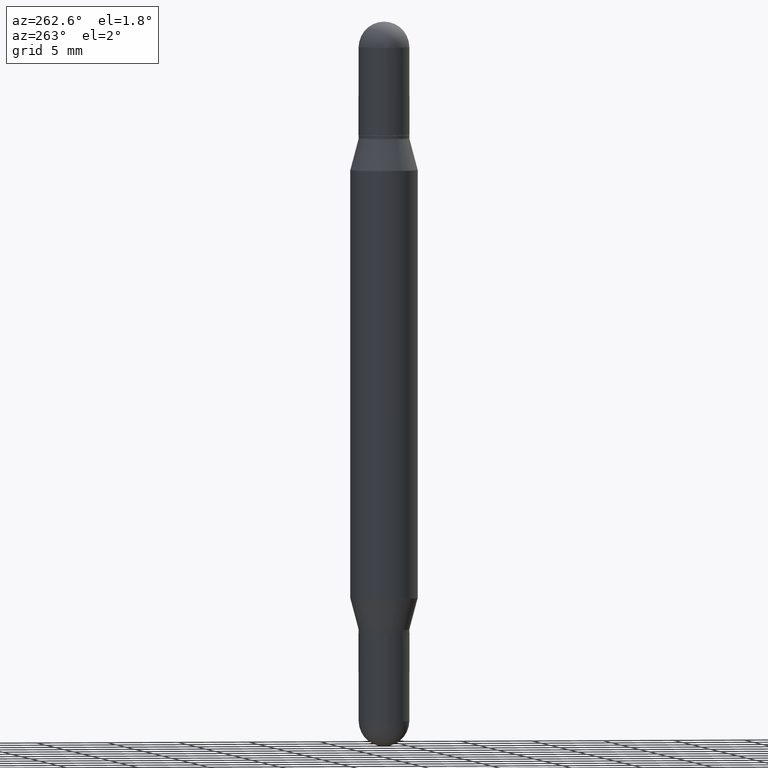
[diagram: clean part render]
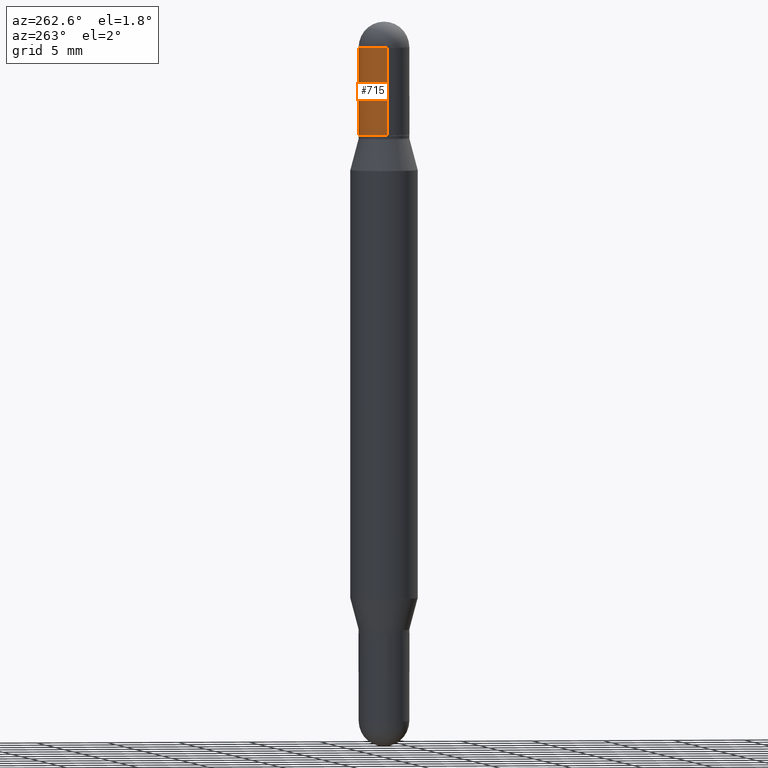
[diagram: same view with one face highlighted and labeled with its STEP entity id]
A machine part, auxiliary view. The second image highlights one B-rep face of the part: STEP entity #715.
In plain terms, the highlighted cylindrical surface (edge-blend (fillet) strip) has radius 1.7856 mm, axis along (-0, -0, -1).
Its self-contained STEP definition (entity closure, byte-faithful):
#10 = DIRECTION ( 'NONE',  ( -2.445468806185136877E-29, -3.479614466977828648E-15, -1.000000000000000000 ) ) ;
#38 = AXIS2_PLACEMENT_3D ( 'NONE', #167, #882, #950 ) ;
#50 = VERTEX_POINT ( 'NONE', #489 ) ;
#94 = DIRECTION ( 'NONE',  ( 1.000000000000000000, -6.982962677686268288E-15, 0.000000000000000000 ) ) ;
#105 = CYLINDRICAL_SURFACE ( 'NONE', #709, 0.07030000000000004301 ) ;
#144 = ORIENTED_EDGE ( 'NONE', *, *, #146, .T. ) ;
#146 = EDGE_CURVE ( 'NONE', #615, #50, #653, .T. ) ;
#167 = CARTESIAN_POINT ( 'NONE',  ( 4.127951344840510809E-29, -1.097506585562398841E-15, -0.3119999999999998330 ) ) ;
#186 = ORIENTED_EDGE ( 'NONE', *, *, #990, .T. ) ;
#216 = ORIENTED_EDGE ( 'NONE', *, *, #261, .F. ) ;
#217 = EDGE_CURVE ( 'NONE', #1107, #50, #1117, .T. ) ;
#220 = CARTESIAN_POINT ( 'NONE',  ( -0.07030000000000004301, -1.947021679847895810E-16, -0.07030000000000007077 ) ) ;
#235 = LINE ( 'NONE', #571, #930 ) ;
#261 = EDGE_CURVE ( 'NONE', #320, #893, #870, .T. ) ;
#280 = CIRCLE ( 'NONE', #367, 0.07030000000000004301 ) ;
#288 = CARTESIAN_POINT ( 'NONE',  ( 4.719021155295457704E-29, -2.564837688938590811E-16, -0.07030000000000007077 ) ) ;
#320 = VERTEX_POINT ( 'NONE', #949 ) ;
#337 = CARTESIAN_POINT ( 'NONE',  ( 0.07030000000000005689, -1.588408861803743789E-15, -0.3119999999999998330 ) ) ;
#355 = DIRECTION ( 'NONE',  ( 1.000000000000000000, -6.982962677686268288E-15, 0.000000000000000000 ) ) ;
#367 = AXIS2_PLACEMENT_3D ( 'NONE', #288, #897, #355 ) ;
#410 = DIRECTION ( 'NONE',  ( 2.445468806185136597E-29, 3.479614466977828254E-15, 1.000000000000000000 ) ) ;
#438 = VECTOR ( 'NONE', #10, 39.37007874015748143 ) ;
#448 = EDGE_CURVE ( 'NONE', #893, #1107, #280, .T. ) ;
#477 = CARTESIAN_POINT ( 'NONE',  ( 4.909022762413921804E-16, 0.07029999999999980709, -0.07030000000000032057 ) ) ;
#489 = CARTESIAN_POINT ( 'NONE',  ( -0.07030000000000007077, -1.947021679847897782E-16, -0.3119999999999998330 ) ) ;
#497 = AXIS2_PLACEMENT_3D ( 'NONE', #530, #410, #94 ) ;
#530 = CARTESIAN_POINT ( 'NONE',  ( 4.719021155295457704E-29, -2.564837688938590811E-16, -0.07030000000000007077 ) ) ;
#535 = EDGE_LOOP ( 'NONE', ( #1092, #566, #216, #186, #144 ) ) ;
#558 = FACE_OUTER_BOUND ( 'NONE', #535, .T. ) ;
#566 = ORIENTED_EDGE ( 'NONE', *, *, #448, .F. ) ;
#571 = CARTESIAN_POINT ( 'NONE',  ( 0.07030000000000004301, -7.461998082062317995E-15, -2.000000000000000000 ) ) ;
#615 = VERTEX_POINT ( 'NONE', #337 ) ;
#653 = CIRCLE ( 'NONE', #38, 0.07030000000000005689 ) ;
#660 = DIRECTION ( 'NONE',  ( -2.445468806185136877E-29, -3.479614466977828648E-15, -1.000000000000000000 ) ) ;
#709 = AXIS2_PLACEMENT_3D ( 'NONE', #972, #891, #739 ) ;
#715 = ADVANCED_FACE ( 'NONE', ( #558 ), #105, .T. ) ;
#739 = DIRECTION ( 'NONE',  ( 1.000000000000000000, -6.982962677686261189E-15, 0.000000000000000000 ) ) ;
#870 = CIRCLE ( 'NONE', #497, 0.07030000000000004301 ) ;
#882 = DIRECTION ( 'NONE',  ( 2.445468806185136597E-29, 3.479614466977828254E-15, 1.000000000000000000 ) ) ;
#891 = DIRECTION ( 'NONE',  ( -2.445468806185136597E-29, -3.479614466977828254E-15, -1.000000000000000000 ) ) ;
#893 = VERTEX_POINT ( 'NONE', #477 ) ;
#897 = DIRECTION ( 'NONE',  ( 2.445468806185136597E-29, 3.479614466977828254E-15, 1.000000000000000000 ) ) ;
#930 = VECTOR ( 'NONE', #660, 39.37007874015748143 ) ;
#949 = CARTESIAN_POINT ( 'NONE',  ( 0.07030000000000004301, -1.167897453469473342E-15, -0.07030000000000007077 ) ) ;
#950 = DIRECTION ( 'NONE',  ( 1.000000000000000000, -6.982962677686266711E-15, 0.000000000000000000 ) ) ;
#972 = CARTESIAN_POINT ( 'NONE',  ( 0.000000000000000000, -6.971095805820973837E-15, -2.000000000000000000 ) ) ;
#990 = EDGE_CURVE ( 'NONE', #320, #615, #235, .T. ) ;
#1037 = CARTESIAN_POINT ( 'NONE',  ( -0.07030000000000004301, -6.488802796577634580E-15, -2.000000000000000000 ) ) ;
#1092 = ORIENTED_EDGE ( 'NONE', *, *, #217, .F. ) ;
#1107 = VERTEX_POINT ( 'NONE', #220 ) ;
#1117 = LINE ( 'NONE', #1037, #438 ) ;